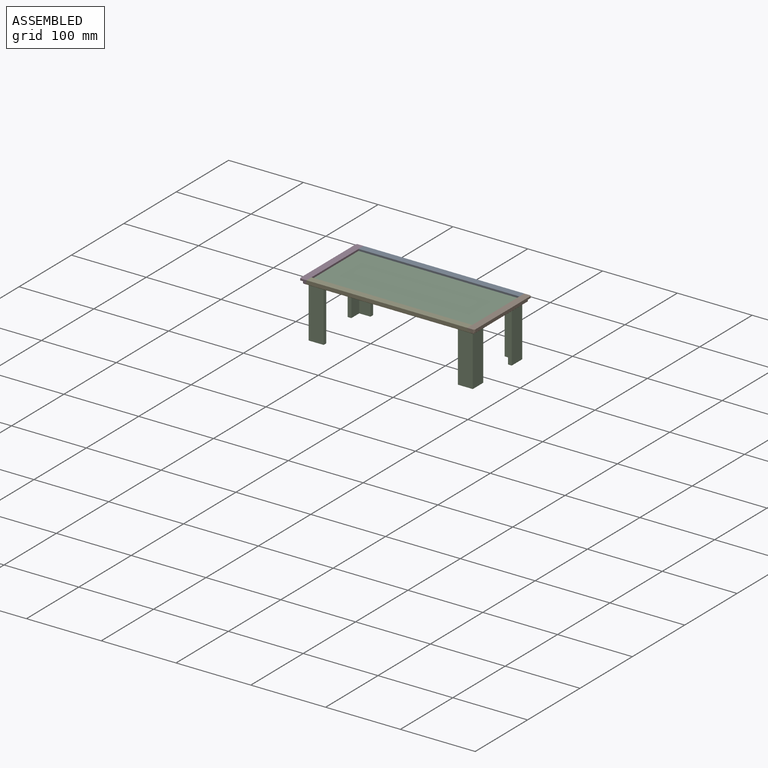
[diagram: assembled view]
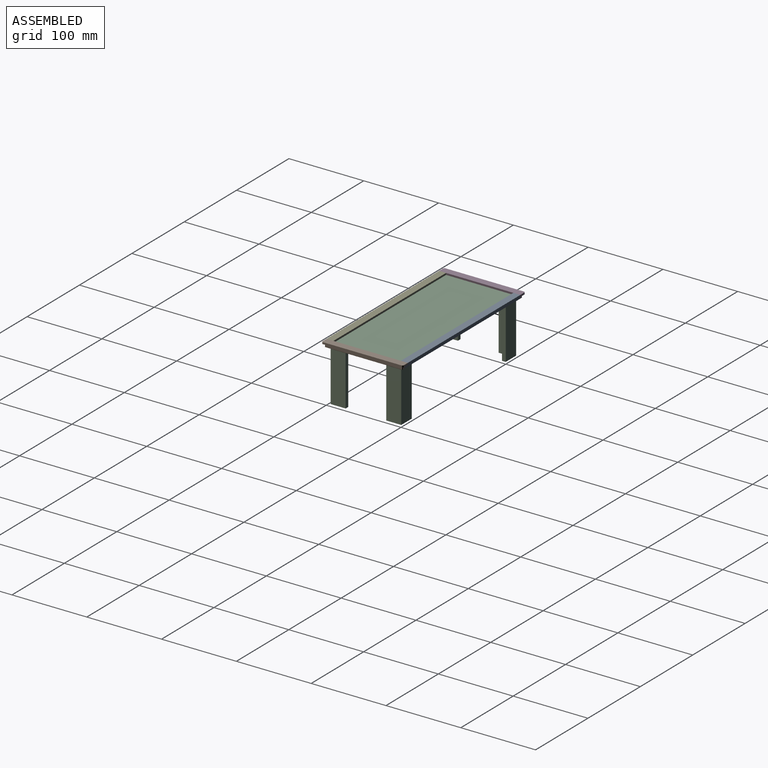
[diagram: assembled view, second angle]
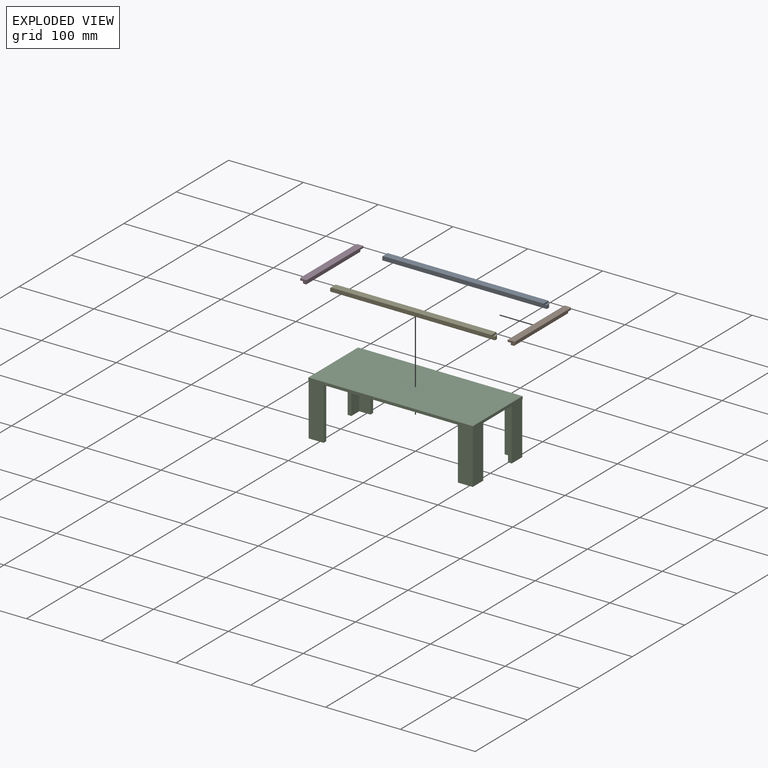
[diagram: exploded view]
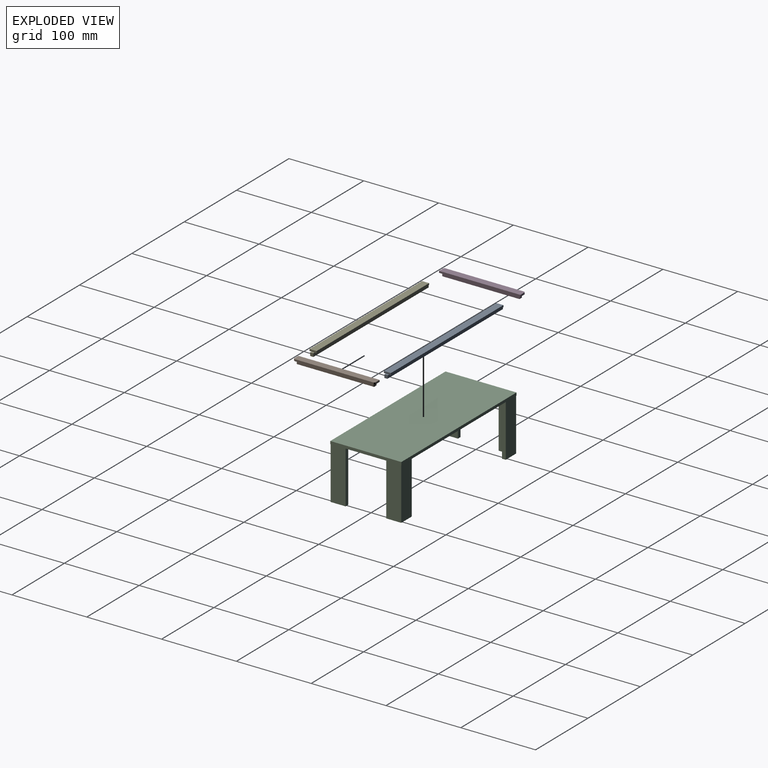
[diagram: exploded view, second angle]
ASSEMBLY  parts=5 mates=2
PART A: 19 faces, bbox 220x9.4x6.8 mm
  f0: plane 215x2.5mm, normal (0,0,-1), area 537.5mm2, adj f1,f2,f4,f11
  f1: plane 215x2.4mm, normal (0,1,0), area 516mm2, adj f0,f2,f4,f5
  f2: plane 9.4x2.4mm, normal (-1,0,0), area 22.6mm2, adj f0,f1,f3,f5,f6,f8
  f3: plane 215x2.4mm, normal (0,-1,0), area 516mm2, adj f2,f4,f5,f6
  f4: plane 9.4x2.4mm, normal (1,0,0), area 22.6mm2, adj f0,f1,f3,f5,f6,f7
  f5: plane 215x9.4mm, normal (0,0,1), area 2021mm2, adj f1,f2,f3,f4
  f6: plane 215x2.5mm, normal (0,0,-1), area 537.5mm2, adj f2,f3,f4,f9
  f7: plane 4.4x2.5mm, normal (0,0,1), area 11mm2, adj f4,f9,f10,f11
  f8: plane 4.4x2.5mm, normal (0,0,1), area 11mm2, adj f2,f9,f11,f12
  f9: plane 220x3.9mm, normal (0,-1,0), area 858mm2, adj f6,f7,f8,f10,f12,f18
  f10: plane 4.4x4.4mm, normal (1,0,0), area 19mm2, adj f7,f9,f11,f13,f17,f18
  f11: plane 220x4.4mm, normal (0,1,0), area 968mm2, adj f0,f7,f8,f10,f12,f13
  f12: plane 4.4x4.4mm, normal (-1,0,0), area 19mm2, adj f8,f9,f11,f13,f14,f18
  f13: plane 220x3.9mm, normal (0,0,-1), area 858mm2, adj f10,f11,f12,f18
  f14: cylinder r=0.25mm len=20.6mm, axis (-1,0,0), area 32.4mm2, adj f12,f15
  f15: plane 0.5x0.5mm, normal (-1,0,0), area 0.2mm2, adj f14
  f16: cone r=0mm half-angle=59deg, axis (1,0,0), area 0.2mm2, adj f17
  f17: cylinder r=0.25mm len=12mm, axis (1,0,0), area 18.8mm2, adj f10,f16
  f18: plane 220x0.5mm, normal (0,-0.71,-0.71), area 155.6mm2, adj f9,f10,f12,f13
PART B: 22 faces, bbox 9.4x108.8x6.8 mm
  f0: plane 103.8x4.4mm, normal (1,0,0), area 456.1mm2, adj f2,f10,f11,f12,f13,f14,f16,f19
  f1: plane 102.8x3.9mm, normal (-1,0,0), area 400.5mm2, adj f2,f13,f14,f15,f18,f21
  f2: plane 108.8x9.4mm, normal (0,0,-1), area 564.5mm2, adj f0,f1,f3,f4,f5,f6,f7,f8
  f3: plane 7.4x2.4mm, normal (0,-1,0), area 17.8mm2, adj f2,f4,f8,f9
  f4: plane 108.8x2.4mm, normal (1,0,0), area 261.1mm2, adj f2,f3,f5,f9
  f5: plane 7.4x2.4mm, normal (0,1,0), area 17.8mm2, adj f2,f4,f6,f9
  f6: cylinder r=2mm len=2.4mm, axis (0,0,-1), area 7.5mm2, adj f2,f5,f7,f9
  f7: plane 104.8x2.4mm, normal (-1,0,0), area 251.5mm2, adj f2,f6,f8,f9
  f8: cylinder r=2mm len=2.4mm, axis (0,0,-1), area 7.5mm2, adj f2,f3,f7,f9
  f9: plane 108.8x9.4mm, normal (0,0,1), area 1021mm2, adj f3,f4,f5,f6,f7,f8
  f10: plane 3.9x3.9mm, normal (0,1,0), area 15.2mm2, adj f0,f2,f19,f21
  f11: plane 3.9x3.9mm, normal (0,-1,0), area 15.2mm2, adj f0,f2,f15,f16
  f12: plane 102.8x3.9mm, normal (0,0,-1), area 400.9mm2, adj f0,f16,f18,f19
  f13: cylinder r=0.25mm len=4.4mm, axis (-1,0,0), area 6.9mm2, adj f0,f1
  f14: cylinder r=0.25mm len=4.4mm, axis (-1,0,0), area 6.9mm2, adj f0,f1
  f15: plane 3.9x0.5mm, normal (-0.71,-0.71,0), area 2.8mm2, adj f1,f2,f11,f17
  f16: plane 3.9x0.5mm, normal (0,-0.71,-0.71), area 2.8mm2, adj f0,f11,f12,f17
  f17: plane 0.5x0.5mm, normal (-0.58,-0.58,-0.58), area 0.2mm2, adj f15,f16,f18
  f18: plane 102.8x0.5mm, normal (-0.71,0,-0.71), area 72.7mm2, adj f1,f12,f17,f20
  f19: plane 3.9x0.5mm, normal (0,0.71,-0.71), area 2.8mm2, adj f0,f10,f12,f20
  f20: plane 0.5x0.5mm, normal (-0.58,0.58,-0.58), area 0.2mm2, adj f18,f19,f21
  f21: plane 3.9x0.5mm, normal (-0.71,0.71,0), area 2.8mm2, adj f1,f2,f10,f20
PART C: 34 faces, bbox 220x95x73.7 mm
  f0: plane 220x95mm, normal (0,0,-1), area 20200mm2, adj f1,f2,f3,f4,f6,f7,f8,f9
  f1: plane 220x3.7mm, normal (0,1,0), area 814mm2, adj f0,f2,f4,f5
  f2: plane 95x3.7mm, normal (-1,0,0), area 351.5mm2, adj f0,f1,f3,f5
  f3: plane 220x3.7mm, normal (0,-1,0), area 814mm2, adj f0,f2,f4,f5
  f4: plane 95x3.7mm, normal (1,0,0), area 351.5mm2, adj f0,f1,f3,f5
  f5: plane 220x95mm, normal (0,0,1), area 20900mm2, adj f1,f2,f3,f4
  f6: plane 70x20mm, normal (0,1,0), area 1400mm2, adj f0,f7,f11,f12
  f7: plane 70x20mm, normal (-1,0,0), area 1400mm2, adj f0,f6,f8,f12
  f8: plane 70x5mm, normal (0,-1,0), area 350mm2, adj f0,f7,f9,f12
  f9: plane 70x15mm, normal (1,0,0), area 1050mm2, adj f0,f8,f10,f12
  f10: plane 70x15mm, normal (0,-1,0), area 1050mm2, adj f0,f9,f11,f12
  f11: plane 70x5mm, normal (1,0,0), area 350mm2, adj f0,f6,f10,f12
  f12: plane 20x20mm, normal (0,0,-1), area 175mm2, adj f6,f7,f8,f9,f10,f11
  f13: plane 70x20mm, normal (1,0,0), area 1400mm2, adj f0,f14,f18,f19
  f14: plane 70x20mm, normal (0,1,0), area 1400mm2, adj f0,f13,f15,f19
  f15: plane 70x5mm, normal (-1,0,0), area 350mm2, adj f0,f14,f16,f19
  f16: plane 70x15mm, normal (0,-1,0), area 1050mm2, adj f0,f15,f17,f19
  f17: plane 70x15mm, normal (-1,0,0), area 1050mm2, adj f0,f16,f18,f19
  f18: plane 70x5mm, normal (0,-1,0), area 350mm2, adj f0,f13,f17,f19
  f19: plane 20x20mm, normal (0,0,-1), area 175mm2, adj f13,f14,f15,f16,f17,f18
  f20: plane 70x20mm, normal (0,-1,0), area 1400mm2, adj f0,f21,f25,f26
  f21: plane 70x20mm, normal (1,0,0), area 1400mm2, adj f0,f20,f22,f26
  f22: plane 70x5mm, normal (0,1,0), area 350mm2, adj f0,f21,f23,f26
  f23: plane 70x15mm, normal (-1,0,0), area 1050mm2, adj f0,f22,f24,f26
  f24: plane 70x15mm, normal (0,1,0), area 1050mm2, adj f0,f23,f25,f26
  f25: plane 70x5mm, normal (-1,0,0), area 350mm2, adj f0,f20,f24,f26
  f26: plane 20x20mm, normal (0,0,-1), area 175mm2, adj f20,f21,f22,f23,f24,f25
  f27: plane 70x5mm, normal (0,1,0), area 350mm2, adj f0,f28,f32,f33
  f28: plane 70x20mm, normal (-1,0,0), area 1400mm2, adj f0,f27,f29,f33
  f29: plane 70x20mm, normal (0,-1,0), area 1400mm2, adj f0,f28,f30,f33
  f30: plane 70x5mm, normal (1,0,0), area 350mm2, adj f0,f29,f31,f33
  f31: plane 70x15mm, normal (0,1,0), area 1050mm2, adj f0,f30,f32,f33
  f32: plane 70x15mm, normal (1,0,0), area 1050mm2, adj f0,f27,f31,f33
  f33: plane 20x20mm, normal (0,0,-1), area 175mm2, adj f27,f28,f29,f30,f31,f32
PART D: same geometry as B
PART E: same geometry as A
PLACE A rot(axis=(0,0,1),180deg) t=(0,0,0)mm
PLACE B rot(axis=(0,0,1),180deg) t=(0,0,0)mm
PLACE C at identity fixed
PLACE D at identity
PLACE E at identity
MATE slider C.f4 <-> A.f12  axis (1,0,0) through (110,47.5,3.7)mm
MATE slider B.f10 <-> C.f1  axis (0,1,0) through (110,-51.9,3.7)mm
